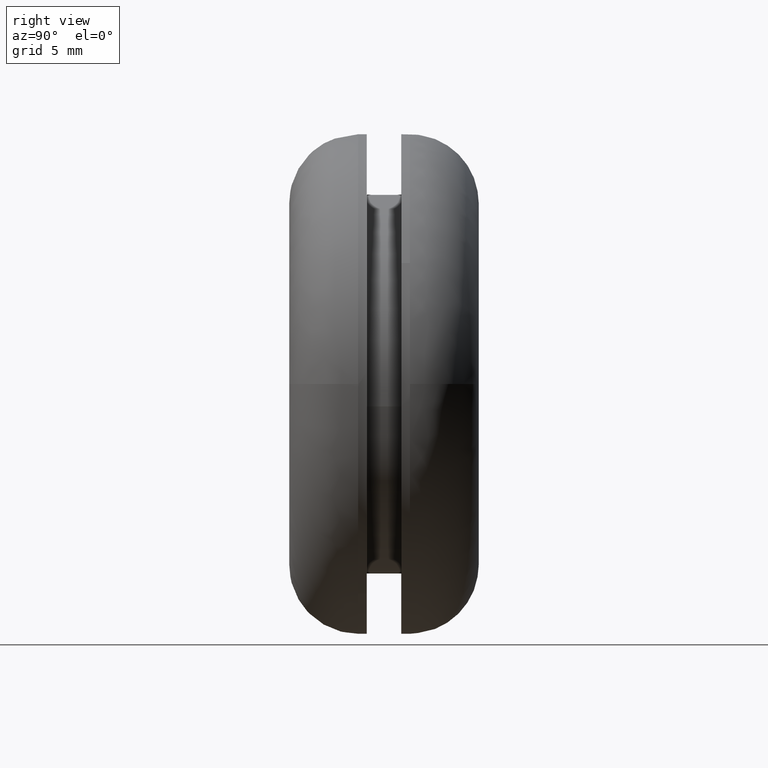
[diagram: clean part render]
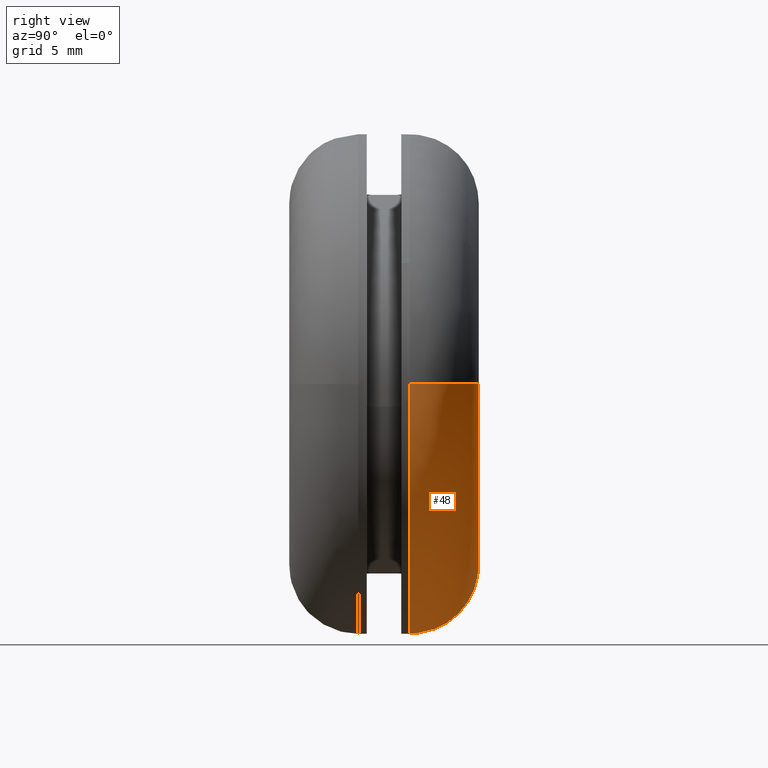
[diagram: same view with one face highlighted and labeled with its STEP entity id]
A machine part, right view. The second image highlights one B-rep face of the part: STEP entity #48.
In plain terms, the highlighted face is a freeform B-spline surface patch.
Its self-contained STEP definition (entity closure, byte-faithful):
#48=ADVANCED_FACE('',(#141),#140,.T.);
#140=( BOUNDED_SURFACE() B_SPLINE_SURFACE( 2,2,((#264,#265,#266,#267,#268),(#269,#270,#271,#272,#273),(#274,#275,#276,#277,#278),(#279,#280,#281,#282,#283),(#284,#285,#286,#287,#288)), .UNSPECIFIED.,.F.,.F.,.F.) B_SPLINE_SURFACE_WITH_KNOTS((3,2,3),(3,2,3),(0.00000000000E+000,5.00000000000E-001,1.00000000000E+000),(0.00000000000E+000,5.00000000000E-001,1.00000000000E+000), .UNSPECIFIED. ) GEOMETRIC_REPRESENTATION_ITEM() RATIONAL_B_SPLINE_SURFACE(((1.00000000000E+000,7.07106781004E-001,1.00000000000E+000,7.07106781004E-001,1.00000000000E+000),(7.07106781187E-001,4.99999999871E-001,7.07106781187E-001,4.99999999871E-001,7.07106781187E-001),(1.00000000000E+000,7.07106781004E-001,1.00000000000E+000,7.07106781004E-001,1.00000000000E+000),(7.07106781187E-001,4.99999999871E-001,7.07106781187E-001,4.99999999871E-001,7.07106781187E-001),(1.00000000000E+000,7.07106781004E-001,1.00000000000E+000,7.07106781004E-001,1.00000000000E+000))) REPRESENTATION_ITEM('') SURFACE() );
#141=FACE_OUTER_BOUND('',#289,.T.);
#264=CARTESIAN_POINT('',(-6.50000000003E+000,6.99999999588E+000,4.15429219909E-013));
#265=CARTESIAN_POINT('',(-6.49999999590E+000,1.09999999979E+001,3.94583384781E-013));
#266=CARTESIAN_POINT('',(-1.04999999980E+001,1.10000000000E+001,3.94093542228E-013));
#267=CARTESIAN_POINT('',(-1.45000000000E+001,1.10000000021E+001,3.93603699676E-013));
#268=CARTESIAN_POINT('',(-1.45000000000E+001,7.00000000001E+000,4.14449534804E-013));
#269=CARTESIAN_POINT('',(-6.50000000003E+000,6.99999999588E+000,-6.50000000001E+000));
#270=CARTESIAN_POINT('',(-6.49999999590E+000,1.09999999979E+001,-6.49999999589E+000));
#271=CARTESIAN_POINT('',(-1.04999999980E+001,1.10000000000E+001,-1.04999999980E+001));
#272=CARTESIAN_POINT('',(-1.45000000000E+001,1.10000000021E+001,-1.45000000000E+001));
#273=CARTESIAN_POINT('',(-1.45000000000E+001,7.00000000001E+000,-1.45000000000E+001));
#274=CARTESIAN_POINT('',(-1.29284960842E-011,6.99999999588E+000,-6.50000000001E+000));
#275=CARTESIAN_POINT('',(-1.12697245522E-011,1.09999999979E+001,-6.49999999589E+000));
#276=CARTESIAN_POINT('',(-1.12694796382E-011,1.10000000000E+001,-1.04999999980E+001));
#277=CARTESIAN_POINT('',(-1.12692347241E-011,1.10000000021E+001,-1.45000000000E+001));
#278=CARTESIAN_POINT('',(-1.29280062562E-011,7.00000000000E+000,-1.45000000000E+001));
#279=CARTESIAN_POINT('',(6.50000000000E+000,6.99999999588E+000,-6.50000000001E+000));
#280=CARTESIAN_POINT('',(6.49999999588E+000,1.09999999979E+001,-6.49999999589E+000));
#281=CARTESIAN_POINT('',(1.04999999979E+001,1.10000000000E+001,-1.04999999980E+001));
#282=CARTESIAN_POINT('',(1.45000000000E+001,1.10000000021E+001,-1.45000000000E+001));
#283=CARTESIAN_POINT('',(1.45000000000E+001,7.00000000000E+000,-1.45000000000E+001));
#284=CARTESIAN_POINT('',(6.50000000000E+000,6.99999999588E+000,4.16225187749E-013));
#285=CARTESIAN_POINT('',(6.49999999588E+000,1.09999999979E+001,3.95379352621E-013));
#286=CARTESIAN_POINT('',(1.04999999979E+001,1.10000000000E+001,3.95379336432E-013));
#287=CARTESIAN_POINT('',(1.45000000000E+001,1.10000000021E+001,3.95379320243E-013));
#288=CARTESIAN_POINT('',(1.45000000000E+001,7.00000000000E+000,4.16225155371E-013));
#289=EDGE_LOOP('',(#437,#438,#439,#440,#441,#442,#443,#444));
#437=ORIENTED_EDGE('',*,*,#526,.F.);
#438=ORIENTED_EDGE('',*,*,#527,.F.);
#439=ORIENTED_EDGE('',*,*,#528,.F.);
#440=ORIENTED_EDGE('',*,*,#529,.F.);
#441=ORIENTED_EDGE('',*,*,#530,.F.);
#442=ORIENTED_EDGE('',*,*,#502,.T.);
#443=ORIENTED_EDGE('',*,*,#504,.T.);
#444=ORIENTED_EDGE('',*,*,#531,.T.);
#502=EDGE_CURVE('',#625,#626,#627,.T.);
#504=EDGE_CURVE('',#626,#633,#640,.T.);
#526=EDGE_CURVE('',#789,#790,#791,.T.);
#527=EDGE_CURVE('',#797,#789,#798,.T.);
#528=EDGE_CURVE('',#804,#797,#805,.T.);
#529=EDGE_CURVE('',#811,#804,#812,.T.);
#530=EDGE_CURVE('',#625,#811,#818,.T.);
#531=EDGE_CURVE('',#633,#790,#824,.T.);
#625=VERTEX_POINT('',#946);
#626=VERTEX_POINT('',#947);
#627=CIRCLE('',#951,1.05000000004E+001);
#633=VERTEX_POINT('',#952);
#640=CIRCLE('',#960,1.05000000004E+001);
#789=VERTEX_POINT('',#1054);
#790=VERTEX_POINT('',#1055);
#791=CIRCLE('',#1059,1.45000000000E+001);
#797=VERTEX_POINT('',#1060);
#798=CIRCLE('',#1064,1.45000000000E+001);
#804=VERTEX_POINT('',#1065);
#805=CIRCLE('',#1069,1.45000000000E+001);
#811=VERTEX_POINT('',#1070);
#812=CIRCLE('',#1074,1.45000000000E+001);
#818=(BOUNDED_CURVE() B_SPLINE_CURVE(2,(#1075,#1076,#1077),.UNSPECIFIED.,.F.,.F.) B_SPLINE_CURVE_WITH_KNOTS((3,3),(5.00000000000E-001,1.00000000000E+000),.UNSPECIFIED.) CURVE() GEOMETRIC_REPRESENTATION_ITEM() RATIONAL_B_SPLINE_CURVE((1.00000000000E+000,7.07106781004E-001,1.00000000000E+000)) REPRESENTATION_ITEM('') );
#824=(BOUNDED_CURVE() B_SPLINE_CURVE(3,(#1078,#1079,#1080,#1081,#1082),.UNSPECIFIED.,.F.,.F.) B_SPLINE_CURVE_WITH_KNOTS((4,1,4),(4.99999873917E-001,7.49999927445E-001,1.00000000000E+000),.UNSPECIFIED.) CURVE() GEOMETRIC_REPRESENTATION_ITEM() RATIONAL_B_SPLINE_CURVE((1.00000000000E+000,1.00000000000E+000,1.00000000000E+000,1.00000000000E+000,1.00000000000E+000)) REPRESENTATION_ITEM('') );
#946=CARTESIAN_POINT('',(-1.05000000005E+001,1.10000000000E+001,3.96662329619E-013));
#947=CARTESIAN_POINT('',(0.00000000000E+000,1.10000000000E+001,-1.05000000008E+001));
#948=CARTESIAN_POINT('',(-1.66893165954E-010,1.10000000000E+001,-3.81007225769E-010));
#949=DIRECTION('',(-5.13027856862E-016,-1.00000000000E+000,-7.33909531553E-015));
#950=DIRECTION('',(1.58949381435E-011,7.33909531552E-015,-1.00000000000E+000));
#951=AXIS2_PLACEMENT_3D('',#948,#949,#950);
#952=CARTESIAN_POINT('',(1.04999999437E+001,1.10000000000E+001,1.08972896231E-003));
#957=CARTESIAN_POINT('',(-1.66893165954E-010,1.10000000000E+001,-3.81007225769E-010));
#958=DIRECTION('',(-5.13027856862E-016,-1.00000000000E+000,-7.33909531553E-015));
#959=DIRECTION('',(1.58949381435E-011,7.33909531552E-015,-1.00000000000E+000));
#960=AXIS2_PLACEMENT_3D('',#957,#958,#959);
#1054=CARTESIAN_POINT('',(1.44647022707E+001,7.00000000003E+000,-1.01113214785E+000));
#1055=CARTESIAN_POINT('',(1.45000000000E+001,6.99999999997E+000,2.93799055486E-006));
#1056=CARTESIAN_POINT('',(1.93622895495E-012,7.00000000033E+000,4.44089209850E-016));
#1057=DIRECTION('',(-2.46075443539E-011,-1.00000000000E+000,-4.99104357406E-011));
#1058=DIRECTION('',(-9.97565673840E-001,2.10672245932E-011,6.97332515756E-002));
#1059=AXIS2_PLACEMENT_3D('',#1056,#1057,#1058);
#1060=CARTESIAN_POINT('',(0.00000000000E+000,7.00000000000E+000,-1.45000000000E+001));
#1061=CARTESIAN_POINT('',(-1.08180131519E-012,7.00000000003E+000,1.15019105351E-012));
#1062=DIRECTION('',(1.29938686236E-016,-1.00000000000E+000,1.93279874864E-012));
#1063=DIRECTION('',(-7.46069872548E-014,1.93279874864E-012,1.00000000000E+000));
#1064=AXIS2_PLACEMENT_3D('',#1061,#1062,#1063);
#1065=CARTESIAN_POINT('',(-1.26867230924E+001,6.99999999797E+000,-7.02118630844E+000));
#1066=CARTESIAN_POINT('',(-3.55271367880E-015,7.00000000004E+000,0.00000000000E+000));
#1067=DIRECTION('',(4.84052378386E-012,-1.00000000000E+000,2.87095716045E-010));
#1068=DIRECTION('',(9.99921044204E-001,1.23248537812E-012,-1.25660398839E-002));
#1069=AXIS2_PLACEMENT_3D('',#1066,#1067,#1068);
#1070=CARTESIAN_POINT('',(-1.45000000000E+001,6.99999999997E+000,4.12667558230E-013));
#1071=CARTESIAN_POINT('',(-3.55271367880E-015,7.00000000004E+000,0.00000000000E+000));
#1072=DIRECTION('',(4.84052378386E-012,-1.00000000000E+000,2.87095716045E-010));
#1073=DIRECTION('',(9.99921044204E-001,1.23248537812E-012,-1.25660398839E-002));
#1074=AXIS2_PLACEMENT_3D('',#1071,#1072,#1073);
#1075=CARTESIAN_POINT('',(-1.04999999980E+001,1.10000000000E+001,3.94093542228E-013));
#1076=CARTESIAN_POINT('',(-1.45000000000E+001,1.10000000021E+001,3.93603699676E-013));
#1077=CARTESIAN_POINT('',(-1.45000000000E+001,7.00000000001E+000,4.14449534804E-013));
#1078=CARTESIAN_POINT('',(1.04999985715E+001,1.10000000000E+001,3.96719694129E-013));
#1079=CARTESIAN_POINT('',(1.15324482715E+001,1.10073772446E+001,3.97169837659E-013));
#1080=CARTESIAN_POINT('',(1.36369406041E+001,1.01369418067E+001,4.02129042660E-013));
#1081=CARTESIAN_POINT('',(1.45073768793E+001,8.03244978095E+000,4.12142681540E-013));
#1082=CARTESIAN_POINT('',(1.45000000000E+001,7.00000000000E+000,4.16851738313E-013));